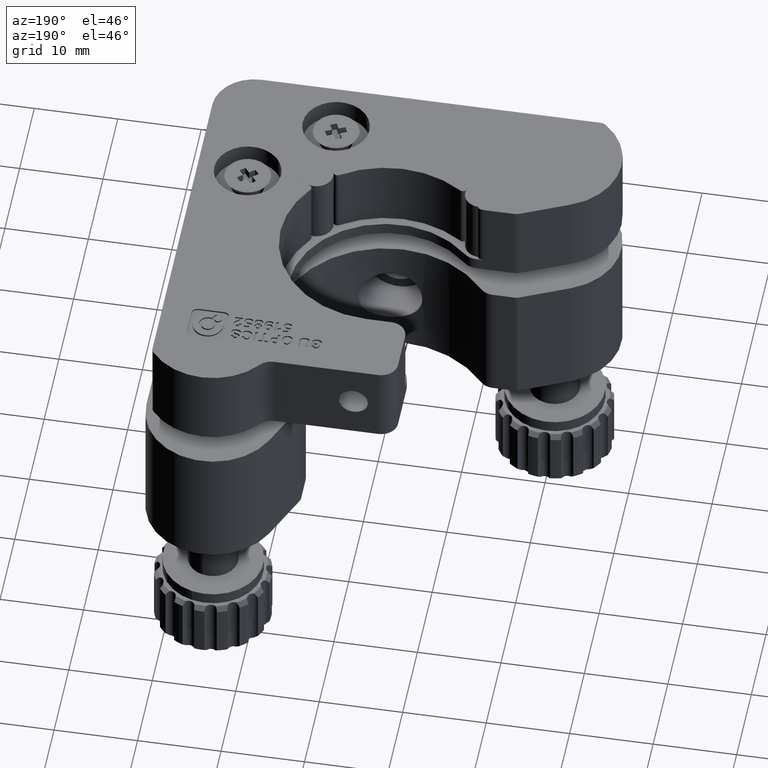
[diagram: clean part render]
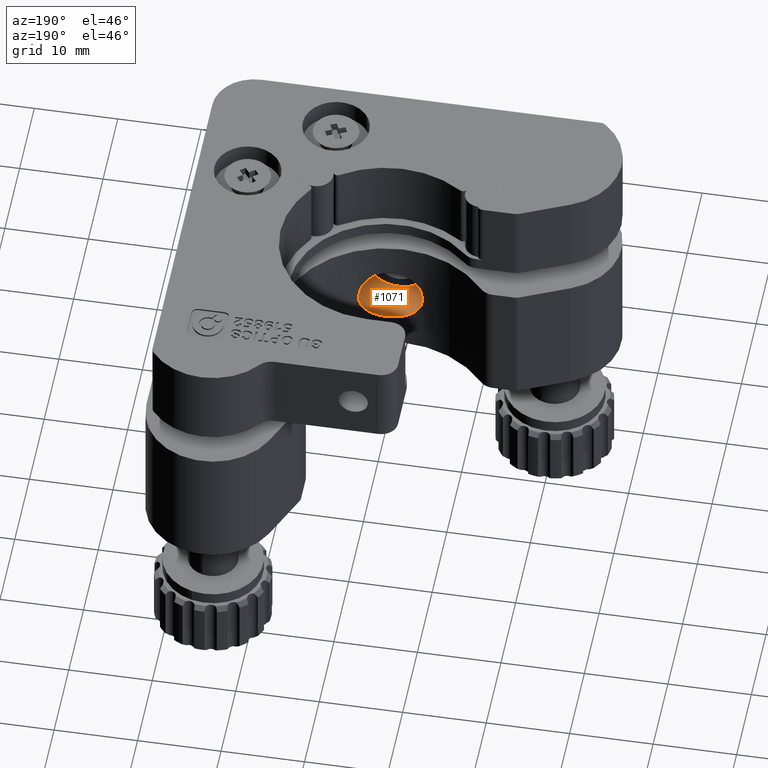
[diagram: same view with one face highlighted and labeled with its STEP entity id]
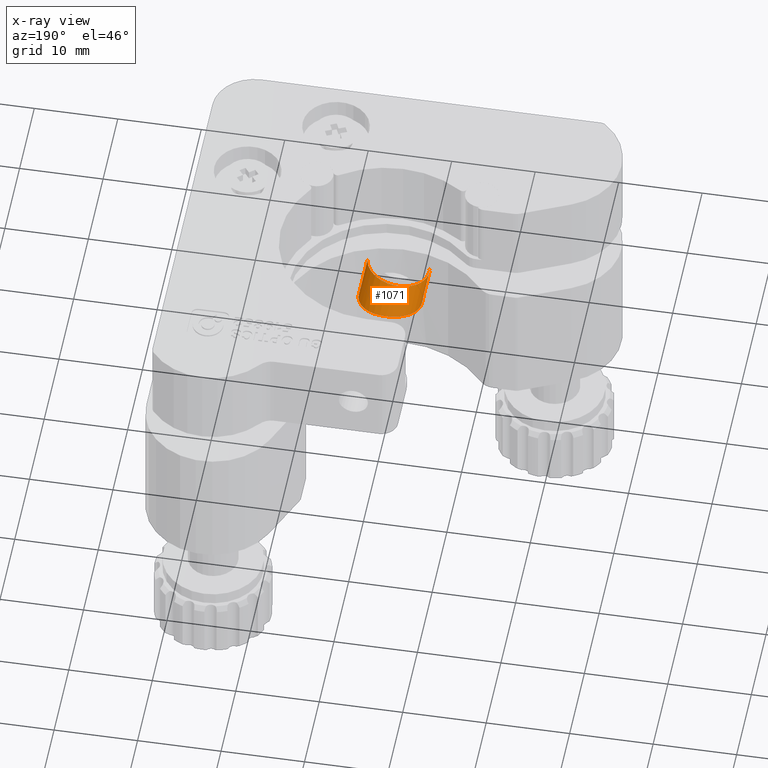
[diagram: x-ray of the same camera — body ghosted, the highlighted face saturated]
A machine part, auxiliary view. The second image highlights one B-rep face of the part: STEP entity #1071.
The next image is the same camera in x-ray: the body ghosted, the highlighted face saturated — about 0% of this face is hidden behind the body in this view.
In plain terms, the highlighted cylindrical surface (edge-blend (fillet) strip) has radius 3.75 mm, axis along (0, -1, -0).
Its self-contained STEP definition (entity closure, byte-faithful):
#395 = CYLINDRICAL_SURFACE ( 'NONE', #32913, 3.750000000000000000 ) ;
#1071 = ADVANCED_FACE ( 'NONE', ( #25731 ), #395, .F. ) ;
#2270 = CARTESIAN_POINT ( 'NONE',  ( 22.41914494663291500, 29.51400709314875200, 29.51794536846513500 ) ) ;
#2391 = CARTESIAN_POINT ( 'NONE',  ( 19.22783980612315700, 28.57558437823940200, 26.29383889776568900 ) ) ;
#2520 = CARTESIAN_POINT ( 'NONE',  ( 15.32885457699042700, 28.55191263476409300, 28.34048682022018900 ) ) ;
#2608 = DIRECTION ( 'NONE',  ( 1.312660819503056700E-016, -1.000000000000000000, 0.0000000000000000000 ) ) ;
#2742 = VERTEX_POINT ( 'NONE', #35878 ) ;
#2749 = VECTOR ( 'NONE', #24532, 1000.000000000000000 ) ;
#3254 = VERTEX_POINT ( 'NONE', #6984 ) ;
#5131 = CARTESIAN_POINT ( 'NONE',  ( 22.24946857561525700, 29.44064339343767900, 28.79689250419540900 ) ) ;
#5248 = CARTESIAN_POINT ( 'NONE',  ( 18.49546670359383400, 28.48074732579983200, 26.26090234811147500 ) ) ;
#5382 = CARTESIAN_POINT ( 'NONE',  ( 15.06646065864656400, 28.59295476579672600, 29.03097702548161500 ) ) ;
#5718 = EDGE_LOOP ( 'NONE', ( #7104, #18850, #27053, #7679 ) ) ;
#6374 = DIRECTION ( 'NONE',  ( 1.000000000000000000, 0.0000000000000000000, 0.0000000000000000000 ) ) ;
#6984 = CARTESIAN_POINT ( 'NONE',  ( 14.94393658312055400, 23.41778669584324000, 30.01366457255799200 ) ) ;
#7104 = ORIENTED_EDGE ( 'NONE', *, *, #31310, .T. ) ;
#7679 = ORIENTED_EDGE ( 'NONE', *, *, #29913, .F. ) ;
#7971 = CARTESIAN_POINT ( 'NONE',  ( 21.94654638470079200, 29.31681205396146300, 28.13161239742929400 ) ) ;
#8084 = CARTESIAN_POINT ( 'NONE',  ( 17.76050873577182500, 28.42787038701206400, 26.37333791915745000 ) ) ;
#8208 = CARTESIAN_POINT ( 'NONE',  ( 14.94393658312055700, 28.61397866854137500, 29.76719157323858800 ) ) ;
#10830 = CARTESIAN_POINT ( 'NONE',  ( 21.52148744352561500, 29.15792344329552300, 27.53877220513124200 ) ) ;
#10946 = CARTESIAN_POINT ( 'NONE',  ( 17.06220567850337100, 28.41640488595623300, 26.62812551692126900 ) ) ;
#12328 = CARTESIAN_POINT ( 'NONE',  ( 18.69393658312055400, 33.41778669584324000, 30.01366457255799200 ) ) ;
#13692 = CARTESIAN_POINT ( 'NONE',  ( 20.99686830004002000, 28.98471076582353900, 27.04418766207566400 ) ) ;
#13812 = CARTESIAN_POINT ( 'NONE',  ( 16.42882880251303100, 28.43868262797204200, 27.01490408245804900 ) ) ;
#15746 = EDGE_CURVE ( 'NONE', #3254, #26538, #26455, .T. ) ;
#16545 = CARTESIAN_POINT ( 'NONE',  ( 20.38412173851343600, 28.81324165275381000, 26.65750484766255100 ) ) ;
#16670 = CARTESIAN_POINT ( 'NONE',  ( 15.88145935310576100, 28.48299674510615300, 27.52086645590743400 ) ) ;
#17845 = LINE ( 'NONE', #21664, #2749 ) ;
#18023 = VERTEX_POINT ( 'NONE', #26113 ) ;
#18850 = ORIENTED_EDGE ( 'NONE', *, *, #23304, .T. ) ;
#19408 = CARTESIAN_POINT ( 'NONE',  ( 19.70584190909854500, 28.66046509920182600, 26.39452056967084200 ) ) ;
#19534 = CARTESIAN_POINT ( 'NONE',  ( 15.44828942922063900, 28.53477184484398800, 28.11916854024816100 ) ) ;
#19624 = CARTESIAN_POINT ( 'NONE',  ( 18.69393658312055400, 23.41778669584324000, 30.01366457255799200 ) ) ;
#21293 = CARTESIAN_POINT ( 'NONE',  ( 14.94393658312055400, 33.41778669584324000, 30.01366457255799200 ) ) ;
#21473 = LINE ( 'NONE', #21293, #33857 ) ;
#21664 = CARTESIAN_POINT ( 'NONE',  ( 22.44393658312055400, 33.41778669584324000, 30.01366457255799200 ) ) ;
#22133 = CARTESIAN_POINT ( 'NONE',  ( 22.32256760856780200, 29.47207972319131700, 29.03593671571309200 ) ) ;
#22261 = CARTESIAN_POINT ( 'NONE',  ( 18.98579429138442300, 28.53950209462839300, 26.26700823864651100 ) ) ;
#22377 = CARTESIAN_POINT ( 'NONE',  ( 15.13873845076746600, 28.58090986065033700, 28.79552380129543500 ) ) ;
#22465 = DIRECTION ( 'NONE',  ( 1.000000000000000000, 0.0000000000000000000, 0.0000000000000000000 ) ) ;
#23304 = EDGE_CURVE ( 'NONE', #18023, #3254, #21473, .T. ) ;
#24014 = DIRECTION ( 'NONE',  ( 1.312660819503056700E-016, -1.000000000000000000, -0.0000000000000000000 ) ) ;
#24017 = DIRECTION ( 'NONE',  ( 1.312660819503056700E-016, -1.000000000000000000, -0.0000000000000000000 ) ) ;
#24041 = AXIS2_PLACEMENT_3D ( 'NONE', #19624, #2608, #22465 ) ;
#24106 = B_SPLINE_CURVE_WITH_KNOTS ( 'NONE', 3,
 ( #27672, #33166, #2270, #22133, #5131, #24990, #7971, #27796, #10830, #30589, #13692, #33398, #16545, #36252, #19408, #2391, #22261, #5248, #25115, #8084, #27924, #10946, #30714, #13812, #33521, #16670, #36376, #19534, #2520, #22377, #5382, #25233, #8208, #28038 ),
 .UNSPECIFIED., .F., .F.,
 ( 4, 2, 2, 2, 2, 2, 2, 2, 2, 2, 2, 2, 2, 2, 2, 2, 4 ),
 ( 0.0000000000000000000, 0.0007394264796464903400, 0.001478852959292980700, 0.002218279438939470800, 0.002957705918585961300, 0.003697132398232451500, 0.004436558877878941600, 0.005175985357525432100, 0.005915411837171922700, 0.006654838316818412400, 0.007394264796464902900, 0.008133691276111392600, 0.008873117755757883200, 0.009612544235404373700, 0.01035197071505086100, 0.01109139719469735000, 0.01183082367434383700 ),
 .UNSPECIFIED. ) ;
#24532 = DIRECTION ( 'NONE',  ( 1.312660819503056700E-016, -1.000000000000000000, -0.0000000000000000000 ) ) ;
#24990 = CARTESIAN_POINT ( 'NONE',  ( 22.06125980891111000, 29.36293165610196400, 28.34528922238879300 ) ) ;
#25115 = CARTESIAN_POINT ( 'NONE',  ( 18.24507691648412300, 28.45807860830614500, 26.28247298147994500 ) ) ;
#25233 = CARTESIAN_POINT ( 'NONE',  ( 14.96850819357395900, 28.60958868339211500, 29.51824584846934100 ) ) ;
#25731 = FACE_OUTER_BOUND ( 'NONE', #5718, .T. ) ;
#26113 = CARTESIAN_POINT ( 'NONE',  ( 14.94393658312055400, 28.61397866854136400, 30.01366457255799200 ) ) ;
#26455 = CIRCLE ( 'NONE', #24041, 3.750000000000000000 ) ;
#26538 = VERTEX_POINT ( 'NONE', #29327 ) ;
#27053 = ORIENTED_EDGE ( 'NONE', *, *, #15746, .T. ) ;
#27672 = CARTESIAN_POINT ( 'NONE',  ( 22.44393658312055400, 29.52503680357694200, 30.01366457255799200 ) ) ;
#27796 = CARTESIAN_POINT ( 'NONE',  ( 21.67634619817953000, 29.21414415550434300, 27.72743978062561600 ) ) ;
#27924 = CARTESIAN_POINT ( 'NONE',  ( 17.52385013887409600, 28.41992383137886300, 26.44220574522775600 ) ) ;
#28038 = CARTESIAN_POINT ( 'NONE',  ( 14.94393658312055400, 28.61397866854136400, 30.01366457255799200 ) ) ;
#29327 = CARTESIAN_POINT ( 'NONE',  ( 22.44393658312055400, 23.41778669584324000, 30.01366457255799200 ) ) ;
#29913 = EDGE_CURVE ( 'NONE', #2742, #26538, #17845, .T. ) ;
#30589 = CARTESIAN_POINT ( 'NONE',  ( 21.18281223910654300, 29.04358714913944400, 27.19841430525227800 ) ) ;
#30714 = CARTESIAN_POINT ( 'NONE',  ( 16.84091452198585500, 28.42094447379064100, 26.74417119044184000 ) ) ;
#31310 = EDGE_CURVE ( 'NONE', #2742, #18023, #24106, .T. ) ;
#32913 = AXIS2_PLACEMENT_3D ( 'NONE', #12328, #24017, #6374 ) ;
#33166 = CARTESIAN_POINT ( 'NONE',  ( 22.44393658312055000, 29.52503680357694500, 29.76342497023614100 ) ) ;
#33398 = CARTESIAN_POINT ( 'NONE',  ( 20.59530094913074500, 28.86890677870230700, 26.77235293028292400 ) ) ;
#33521 = CARTESIAN_POINT ( 'NONE',  ( 16.23443456936356500, 28.45203398207483000, 27.17202411957075000 ) ) ;
#33857 = VECTOR ( 'NONE', #24014, 1000.000000000000000 ) ;
#35878 = CARTESIAN_POINT ( 'NONE',  ( 22.44393658312055400, 29.52503680357694200, 30.01366457255799200 ) ) ;
#36252 = CARTESIAN_POINT ( 'NONE',  ( 19.94079729519880900, 28.70926226153536100, 26.46882715411460700 ) ) ;
#36376 = CARTESIAN_POINT ( 'NONE',  ( 15.72440281672684700, 28.50036334029686800, 27.71036045145197600 ) ) ;